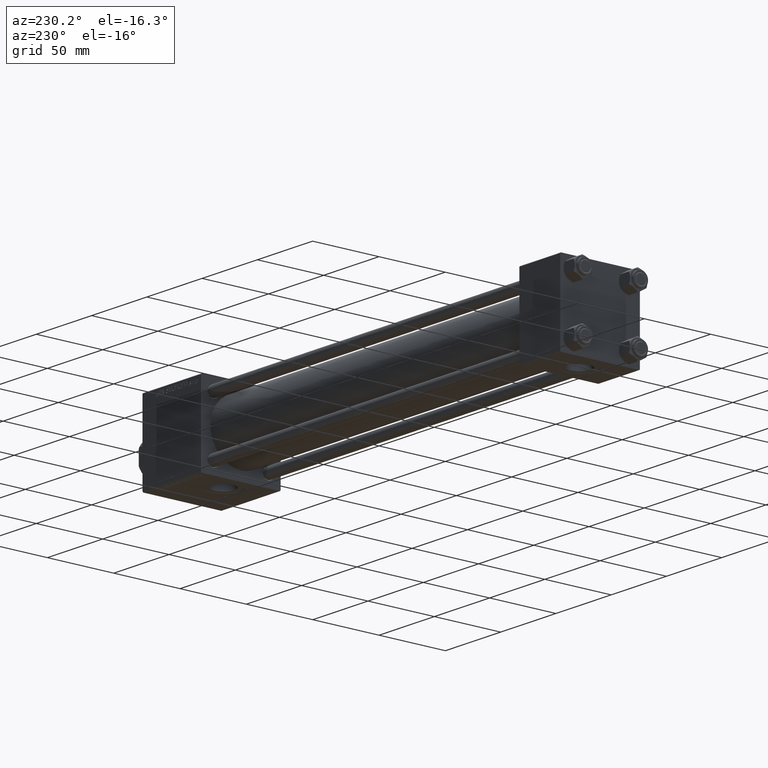
[diagram: clean part render]
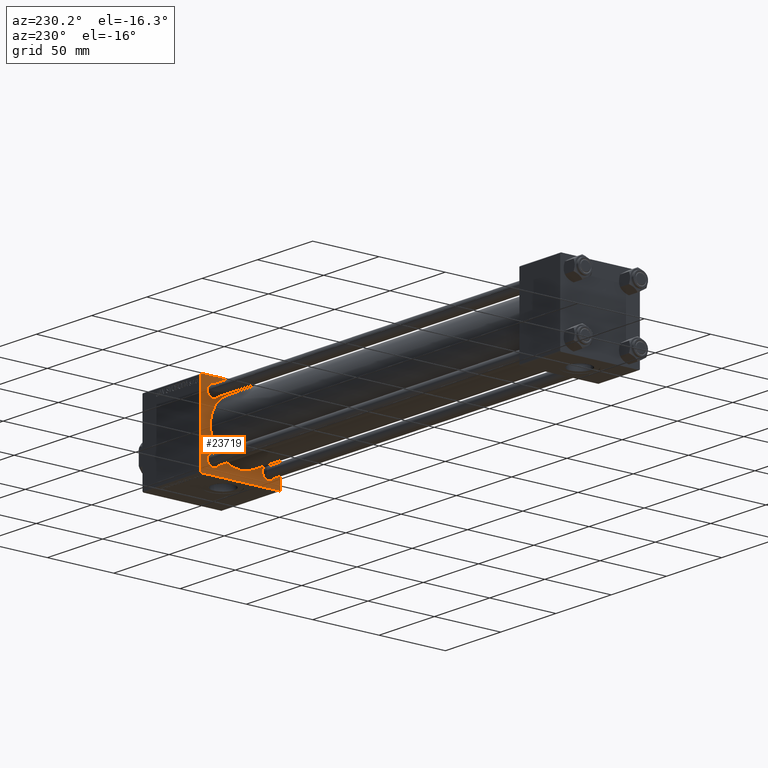
[diagram: same view with one face highlighted and labeled with its STEP entity id]
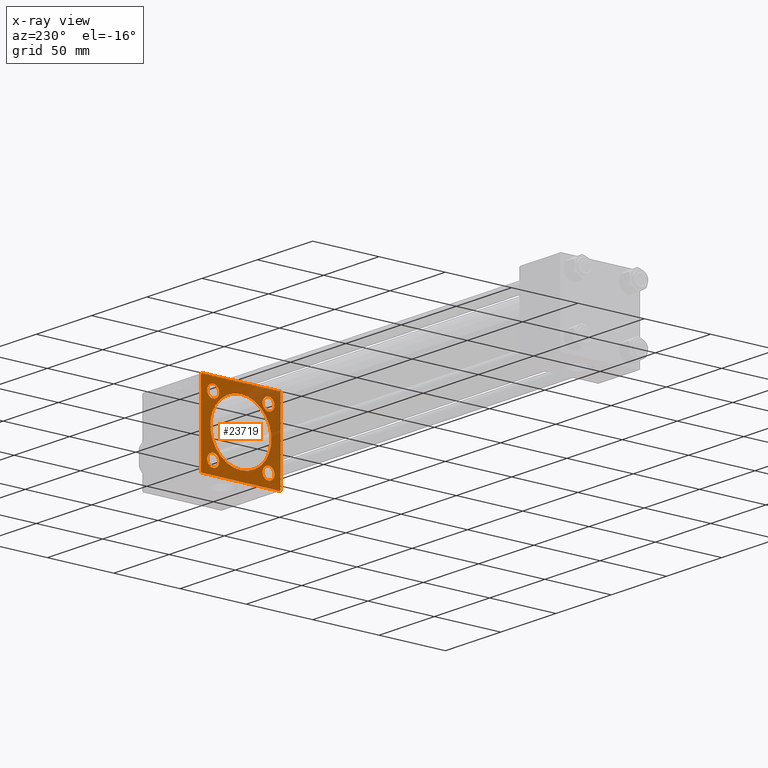
[diagram: x-ray of the same camera — body ghosted, the highlighted face saturated]
A machine part, auxiliary view. The second image highlights one B-rep face of the part: STEP entity #23719.
The next image is the same camera in x-ray: the body ghosted, the highlighted face saturated — about 27% of this face is hidden behind the body in this view.
In plain terms, the highlighted planar face has unit normal (-1, 0, 0).
Its self-contained STEP definition (entity closure, byte-faithful):
#181 = DIRECTION ( 'NONE',  ( 0.000000000000000000, 0.000000000000000000, -1.000000000000000000 ) ) ;
#300 = ORIENTED_EDGE ( 'NONE', *, *, #33729, .T. ) ;
#329 = CARTESIAN_POINT ( 'NONE',  ( 324.9999999999999432, -2.602085213965210642E-15, 0.000000000000000000 ) ) ;
#598 = AXIS2_PLACEMENT_3D ( 'NONE', #47070, #12256, #31568 ) ;
#655 = DIRECTION ( 'NONE',  ( 1.000000000000000000, -0.000000000000000000, 0.000000000000000000 ) ) ;
#894 = VERTEX_POINT ( 'NONE', #18859 ) ;
#930 = ORIENTED_EDGE ( 'NONE', *, *, #36374, .T. ) ;
#1731 = ORIENTED_EDGE ( 'NONE', *, *, #2945, .T. ) ;
#1939 = VECTOR ( 'NONE', #36924, 1000.000000000000000 ) ;
#2061 = DIRECTION ( 'NONE',  ( 1.000000000000000000, -0.000000000000000000, 0.000000000000000000 ) ) ;
#2457 = EDGE_LOOP ( 'NONE', ( #43543, #35405 ) ) ;
#2703 = ORIENTED_EDGE ( 'NONE', *, *, #48745, .T. ) ;
#2945 = EDGE_CURVE ( 'NONE', #36344, #37120, #35519, .T. ) ;
#3225 = EDGE_CURVE ( 'NONE', #45595, #37872, #37550, .T. ) ;
#3609 = CARTESIAN_POINT ( 'NONE',  ( 324.9999999999999432, 20.84999999999999787, -25.35000000000000853 ) ) ;
#3759 = DIRECTION ( 'NONE',  ( 0.000000000000000000, -1.000000000000000000, -1.156482317317871478E-16 ) ) ;
#4163 = DIRECTION ( 'NONE',  ( 1.000000000000000000, -0.000000000000000000, 0.000000000000000000 ) ) ;
#4452 = CARTESIAN_POINT ( 'NONE',  ( 324.9999999999999432, 20.84999999999999787, 20.85000000000000142 ) ) ;
#5149 = CIRCLE ( 'NONE', #21386, 23.00000000000000000 ) ;
#5734 = VERTEX_POINT ( 'NONE', #48856 ) ;
#5905 = DIRECTION ( 'NONE',  ( 1.000000000000000000, -0.000000000000000000, 0.000000000000000000 ) ) ;
#6174 = CARTESIAN_POINT ( 'NONE',  ( 324.9999999999999432, -29.50000000000000000, 29.99999999999999289 ) ) ;
#6406 = DIRECTION ( 'NONE',  ( 0.000000000000000000, 0.000000000000000000, 1.000000000000000000 ) ) ;
#7045 = CARTESIAN_POINT ( 'NONE',  ( 324.9999999999999432, 30.00000000000000000, 30.00000000000000000 ) ) ;
#7346 = CIRCLE ( 'NONE', #27599, 4.500000000000007105 ) ;
#7499 = EDGE_CURVE ( 'NONE', #49586, #19721, #17812, .T. ) ;
#7505 = EDGE_LOOP ( 'NONE', ( #12794, #2703 ) ) ;
#7606 = ORIENTED_EDGE ( 'NONE', *, *, #3225, .F. ) ;
#7699 = DIRECTION ( 'NONE',  ( 0.000000000000000000, 0.000000000000000000, 1.000000000000000000 ) ) ;
#7709 = DIRECTION ( 'NONE',  ( -0.000000000000000000, 0.7071067811865474617, 0.7071067811865474617 ) ) ;
#7807 = EDGE_LOOP ( 'NONE', ( #32129, #1731 ) ) ;
#8235 = CARTESIAN_POINT ( 'NONE',  ( 324.9999999999999432, -20.84999999999999076, -16.34999999999999787 ) ) ;
#8868 = VERTEX_POINT ( 'NONE', #28219 ) ;
#9608 = CARTESIAN_POINT ( 'NONE',  ( 324.9999999999999432, 29.50000000000000000, 30.00000000000000000 ) ) ;
#10829 = VECTOR ( 'NONE', #7709, 1000.000000000000114 ) ;
#11010 = CIRCLE ( 'NONE', #28043, 4.500000000000007105 ) ;
#11391 = DIRECTION ( 'NONE',  ( 0.000000000000000000, 0.000000000000000000, -1.000000000000000000 ) ) ;
#11507 = AXIS2_PLACEMENT_3D ( 'NONE', #31875, #47386, #12568 ) ;
#12005 = FACE_BOUND ( 'NONE', #14270, .T. ) ;
#12256 = DIRECTION ( 'NONE',  ( -1.000000000000000000, 0.000000000000000000, -0.000000000000000000 ) ) ;
#12568 = DIRECTION ( 'NONE',  ( 0.000000000000000000, 0.000000000000000000, 1.000000000000000000 ) ) ;
#12794 = ORIENTED_EDGE ( 'NONE', *, *, #31245, .T. ) ;
#12868 = DIRECTION ( 'NONE',  ( 0.000000000000000000, 0.000000000000000000, 1.000000000000000000 ) ) ;
#13083 = VERTEX_POINT ( 'NONE', #49720 ) ;
#13251 = EDGE_CURVE ( 'NONE', #45595, #5734, #39295, .T. ) ;
#13288 = EDGE_CURVE ( 'NONE', #42291, #45168, #43848, .T. ) ;
#14158 = EDGE_CURVE ( 'NONE', #894, #8868, #34241, .T. ) ;
#14270 = EDGE_LOOP ( 'NONE', ( #300, #37503 ) ) ;
#14568 = CARTESIAN_POINT ( 'NONE',  ( 324.9999999999999432, -29.74999999999999645, 29.74999999999999645 ) ) ;
#14689 = CARTESIAN_POINT ( 'NONE',  ( 324.9999999999999432, 30.00000000000000000, 30.00000000000000000 ) ) ;
#14908 = DIRECTION ( 'NONE',  ( -0.000000000000000000, -0.7071067811865474617, -0.7071067811865474617 ) ) ;
#15022 = CIRCLE ( 'NONE', #18252, 4.500000000000007105 ) ;
#15227 = DIRECTION ( 'NONE',  ( 0.000000000000000000, 0.000000000000000000, -1.000000000000000000 ) ) ;
#15340 = ORIENTED_EDGE ( 'NONE', *, *, #13288, .T. ) ;
#15678 = AXIS2_PLACEMENT_3D ( 'NONE', #29016, #5905, #6406 ) ;
#16100 = DIRECTION ( 'NONE',  ( 0.000000000000000000, 0.000000000000000000, 1.000000000000000000 ) ) ;
#16144 = CARTESIAN_POINT ( 'NONE',  ( 324.9999999999999432, -29.74999999999999645, -29.74999999999999645 ) ) ;
#16389 = DIRECTION ( 'NONE',  ( 0.000000000000000000, -0.7071067811865474617, 0.7071067811865474617 ) ) ;
#16549 = VECTOR ( 'NONE', #15227, 1000.000000000000000 ) ;
#16646 = CARTESIAN_POINT ( 'NONE',  ( 324.9999999999999432, 29.74999999999999645, 29.74999999999999645 ) ) ;
#16998 = AXIS2_PLACEMENT_3D ( 'NONE', #35401, #34654, #23459 ) ;
#17812 = CIRCLE ( 'NONE', #16998, 4.500000000000007105 ) ;
#18252 = AXIS2_PLACEMENT_3D ( 'NONE', #4452, #655, #16100 ) ;
#18467 = AXIS2_PLACEMENT_3D ( 'NONE', #36857, #2061, #33032 ) ;
#18859 = CARTESIAN_POINT ( 'NONE',  ( 324.9999999999999432, 30.00000000000000000, -29.49999999999997868 ) ) ;
#19003 = LINE ( 'NONE', #14689, #29757 ) ;
#19099 = ORIENTED_EDGE ( 'NONE', *, *, #13251, .T. ) ;
#19119 = FACE_BOUND ( 'NONE', #7807, .T. ) ;
#19583 = DIRECTION ( 'NONE',  ( 1.000000000000000000, 0.000000000000000000, 0.000000000000000000 ) ) ;
#19706 = DIRECTION ( 'NONE',  ( 0.000000000000000000, 0.7071067811865474617, -0.7071067811865474617 ) ) ;
#19721 = VERTEX_POINT ( 'NONE', #3609 ) ;
#20465 = CIRCLE ( 'NONE', #44000, 23.00000000000000000 ) ;
#20598 = ORIENTED_EDGE ( 'NONE', *, *, #50185, .T. ) ;
#20893 = VECTOR ( 'NONE', #3759, 1000.000000000000000 ) ;
#21386 = AXIS2_PLACEMENT_3D ( 'NONE', #23263, #31132, #181 ) ;
#22108 = EDGE_CURVE ( 'NONE', #5734, #894, #19003, .T. ) ;
#22482 = ORIENTED_EDGE ( 'NONE', *, *, #7499, .T. ) ;
#23263 = CARTESIAN_POINT ( 'NONE',  ( 324.9999999999999432, -2.602085213965210642E-15, 0.000000000000000000 ) ) ;
#23459 = DIRECTION ( 'NONE',  ( 0.000000000000000000, 0.000000000000000000, 1.000000000000000000 ) ) ;
#23719 = ADVANCED_FACE ( 'NONE', ( #12005, #26755, #31313, #19119, #46820, #35385 ), #34638, .T. ) ;
#24975 = VERTEX_POINT ( 'NONE', #31455 ) ;
#26755 = FACE_BOUND ( 'NONE', #7505, .T. ) ;
#27106 = CARTESIAN_POINT ( 'NONE',  ( 324.9999999999999432, 29.74999999999999645, -29.74999999999999645 ) ) ;
#27599 = AXIS2_PLACEMENT_3D ( 'NONE', #42519, #46819, #7699 ) ;
#27982 = VERTEX_POINT ( 'NONE', #42342 ) ;
#28043 = AXIS2_PLACEMENT_3D ( 'NONE', #48692, #32684, #12868 ) ;
#28219 = CARTESIAN_POINT ( 'NONE',  ( 324.9999999999999432, 29.50000000000000000, -29.99999999999999289 ) ) ;
#28524 = LINE ( 'NONE', #45048, #1939 ) ;
#29016 = CARTESIAN_POINT ( 'NONE',  ( 324.9999999999999432, -20.84999999999999076, -20.85000000000000497 ) ) ;
#29535 = CARTESIAN_POINT ( 'NONE',  ( 324.9999999999999432, -20.84999999999999076, -25.35000000000001208 ) ) ;
#29757 = VECTOR ( 'NONE', #11391, 1000.000000000000000 ) ;
#29852 = CARTESIAN_POINT ( 'NONE',  ( 324.9999999999999432, 20.84999999999999787, 25.35000000000000853 ) ) ;
#30485 = CARTESIAN_POINT ( 'NONE',  ( 324.9999999999999432, -30.00000000000000000, 29.99999999999999289 ) ) ;
#31132 = DIRECTION ( 'NONE',  ( 1.000000000000000000, 0.000000000000000000, 0.000000000000000000 ) ) ;
#31245 = EDGE_CURVE ( 'NONE', #39064, #27982, #7346, .T. ) ;
#31313 = FACE_BOUND ( 'NONE', #41833, .T. ) ;
#31455 = CARTESIAN_POINT ( 'NONE',  ( 324.9999999999999432, -20.84999999999999076, 16.34999999999999787 ) ) ;
#31533 = DIRECTION ( 'NONE',  ( 0.000000000000000000, 0.000000000000000000, -1.000000000000000000 ) ) ;
#31568 = DIRECTION ( 'NONE',  ( -0.000000000000000000, 0.000000000000000000, 1.000000000000000000 ) ) ;
#31875 = CARTESIAN_POINT ( 'NONE',  ( 324.9999999999999432, -20.84999999999999076, 20.85000000000000497 ) ) ;
#32000 = VECTOR ( 'NONE', #16389, 1000.000000000000114 ) ;
#32027 = VERTEX_POINT ( 'NONE', #41641 ) ;
#32084 = CARTESIAN_POINT ( 'NONE',  ( 324.9999999999999432, -2.602085213965210642E-15, 23.00000000000000000 ) ) ;
#32129 = ORIENTED_EDGE ( 'NONE', *, *, #45319, .T. ) ;
#32684 = DIRECTION ( 'NONE',  ( 1.000000000000000000, -0.000000000000000000, 0.000000000000000000 ) ) ;
#32813 = EDGE_CURVE ( 'NONE', #24975, #38690, #36624, .T. ) ;
#32906 = EDGE_LOOP ( 'NONE', ( #930, #15340, #37122, #47665, #7606, #19099, #44345, #46208 ) ) ;
#33032 = DIRECTION ( 'NONE',  ( 0.000000000000000000, 0.000000000000000000, 1.000000000000000000 ) ) ;
#33729 = EDGE_CURVE ( 'NONE', #38690, #24975, #46375, .T. ) ;
#34241 = LINE ( 'NONE', #27106, #38560 ) ;
#34308 = LINE ( 'NONE', #30485, #16549 ) ;
#34395 = DIRECTION ( 'NONE',  ( 0.000000000000000000, 0.000000000000000000, 1.000000000000000000 ) ) ;
#34638 = PLANE ( 'NONE',  #598 ) ;
#34654 = DIRECTION ( 'NONE',  ( 1.000000000000000000, -0.000000000000000000, 0.000000000000000000 ) ) ;
#34943 = CARTESIAN_POINT ( 'NONE',  ( 324.9999999999999432, 20.84999999999999787, -16.34999999999999432 ) ) ;
#35385 = FACE_OUTER_BOUND ( 'NONE', #32906, .T. ) ;
#35401 = CARTESIAN_POINT ( 'NONE',  ( 324.9999999999999432, 20.84999999999999787, -20.85000000000000142 ) ) ;
#35405 = ORIENTED_EDGE ( 'NONE', *, *, #36594, .T. ) ;
#35519 = CIRCLE ( 'NONE', #18467, 4.500000000000007105 ) ;
#36303 = VERTEX_POINT ( 'NONE', #32084 ) ;
#36344 = VERTEX_POINT ( 'NONE', #29535 ) ;
#36374 = EDGE_CURVE ( 'NONE', #8868, #42291, #28524, .T. ) ;
#36594 = EDGE_CURVE ( 'NONE', #13083, #36303, #20465, .T. ) ;
#36624 = CIRCLE ( 'NONE', #39047, 4.500000000000007105 ) ;
#36857 = CARTESIAN_POINT ( 'NONE',  ( 324.9999999999999432, -20.84999999999999076, -20.85000000000000497 ) ) ;
#36924 = DIRECTION ( 'NONE',  ( 0.000000000000000000, -1.000000000000000000, -1.156482317317871478E-16 ) ) ;
#37120 = VERTEX_POINT ( 'NONE', #8235 ) ;
#37122 = ORIENTED_EDGE ( 'NONE', *, *, #46177, .F. ) ;
#37338 = CARTESIAN_POINT ( 'NONE',  ( 324.9999999999999432, -29.50000000000000000, -30.00000000000000000 ) ) ;
#37503 = ORIENTED_EDGE ( 'NONE', *, *, #32813, .T. ) ;
#37550 = LINE ( 'NONE', #7045, #20893 ) ;
#37615 = CIRCLE ( 'NONE', #15678, 4.500000000000007105 ) ;
#37872 = VERTEX_POINT ( 'NONE', #6174 ) ;
#38465 = LINE ( 'NONE', #14568, #10829 ) ;
#38560 = VECTOR ( 'NONE', #14908, 1000.000000000000114 ) ;
#38690 = VERTEX_POINT ( 'NONE', #48222 ) ;
#39047 = AXIS2_PLACEMENT_3D ( 'NONE', #39209, #4163, #34395 ) ;
#39064 = VERTEX_POINT ( 'NONE', #29852 ) ;
#39209 = CARTESIAN_POINT ( 'NONE',  ( 324.9999999999999432, -20.84999999999999076, 20.85000000000000497 ) ) ;
#39211 = CARTESIAN_POINT ( 'NONE',  ( 324.9999999999999432, -30.00000000000000000, -29.49999999999998579 ) ) ;
#39295 = LINE ( 'NONE', #16646, #49066 ) ;
#41641 = CARTESIAN_POINT ( 'NONE',  ( 324.9999999999999432, -30.00000000000000000, 29.49999999999999289 ) ) ;
#41833 = EDGE_LOOP ( 'NONE', ( #22482, #20598 ) ) ;
#42291 = VERTEX_POINT ( 'NONE', #37338 ) ;
#42342 = CARTESIAN_POINT ( 'NONE',  ( 324.9999999999999432, 20.84999999999999787, 16.34999999999999432 ) ) ;
#42519 = CARTESIAN_POINT ( 'NONE',  ( 324.9999999999999432, 20.84999999999999787, 20.85000000000000142 ) ) ;
#43543 = ORIENTED_EDGE ( 'NONE', *, *, #44821, .T. ) ;
#43848 = LINE ( 'NONE', #16144, #32000 ) ;
#44000 = AXIS2_PLACEMENT_3D ( 'NONE', #329, #19583, #31533 ) ;
#44345 = ORIENTED_EDGE ( 'NONE', *, *, #22108, .T. ) ;
#44821 = EDGE_CURVE ( 'NONE', #36303, #13083, #5149, .T. ) ;
#45048 = CARTESIAN_POINT ( 'NONE',  ( 324.9999999999999432, 30.00000000000000000, -29.99999999999999289 ) ) ;
#45134 = EDGE_CURVE ( 'NONE', #32027, #37872, #38465, .T. ) ;
#45168 = VERTEX_POINT ( 'NONE', #39211 ) ;
#45319 = EDGE_CURVE ( 'NONE', #37120, #36344, #37615, .T. ) ;
#45595 = VERTEX_POINT ( 'NONE', #9608 ) ;
#46177 = EDGE_CURVE ( 'NONE', #32027, #45168, #34308, .T. ) ;
#46208 = ORIENTED_EDGE ( 'NONE', *, *, #14158, .T. ) ;
#46375 = CIRCLE ( 'NONE', #11507, 4.500000000000007105 ) ;
#46819 = DIRECTION ( 'NONE',  ( 1.000000000000000000, -0.000000000000000000, 0.000000000000000000 ) ) ;
#46820 = FACE_BOUND ( 'NONE', #2457, .T. ) ;
#47070 = CARTESIAN_POINT ( 'NONE',  ( 324.9999999999999432, 0.000000000000000000, 0.000000000000000000 ) ) ;
#47386 = DIRECTION ( 'NONE',  ( 1.000000000000000000, -0.000000000000000000, 0.000000000000000000 ) ) ;
#47665 = ORIENTED_EDGE ( 'NONE', *, *, #45134, .T. ) ;
#48222 = CARTESIAN_POINT ( 'NONE',  ( 324.9999999999999432, -20.84999999999999076, 25.35000000000001208 ) ) ;
#48692 = CARTESIAN_POINT ( 'NONE',  ( 324.9999999999999432, 20.84999999999999787, -20.85000000000000142 ) ) ;
#48745 = EDGE_CURVE ( 'NONE', #27982, #39064, #15022, .T. ) ;
#48856 = CARTESIAN_POINT ( 'NONE',  ( 324.9999999999999432, 30.00000000000000000, 29.50000000000000000 ) ) ;
#49066 = VECTOR ( 'NONE', #19706, 1000.000000000000114 ) ;
#49586 = VERTEX_POINT ( 'NONE', #34943 ) ;
#49720 = CARTESIAN_POINT ( 'NONE',  ( 324.9999999999999432, 2.146024240737016609E-16, -23.00000000000000000 ) ) ;
#50185 = EDGE_CURVE ( 'NONE', #19721, #49586, #11010, .T. ) ;